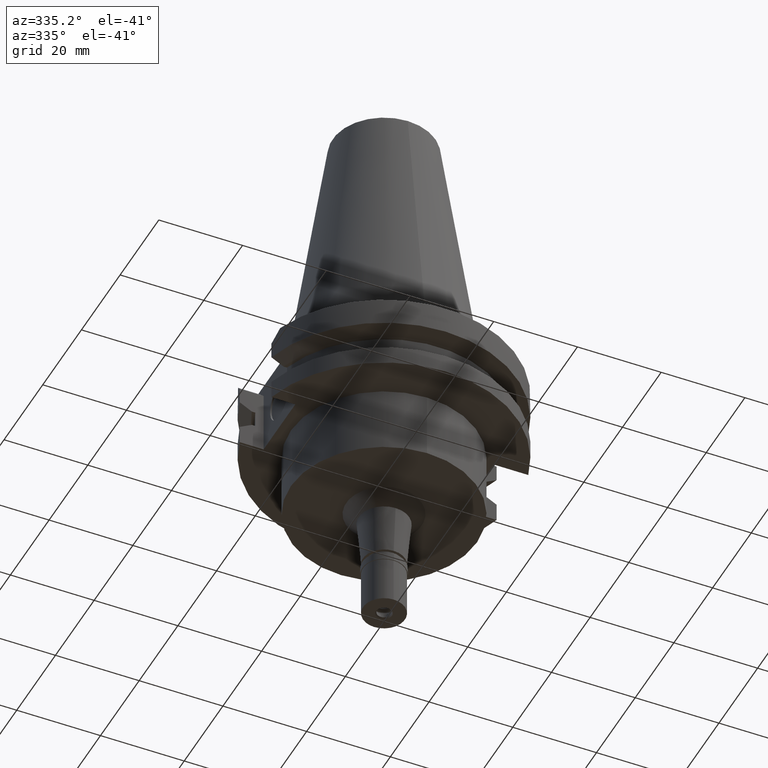
[diagram: clean part render]
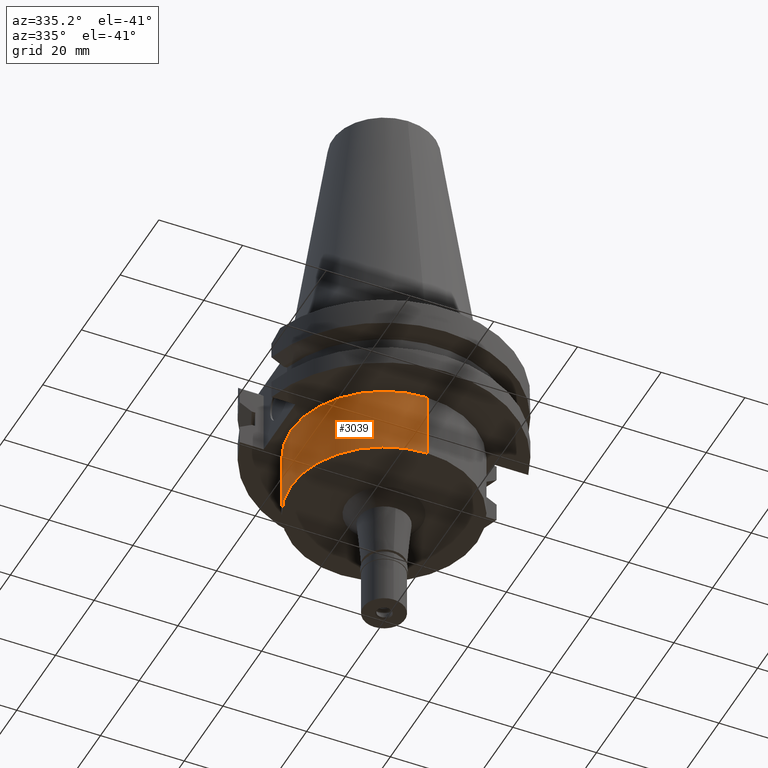
[diagram: same view with one face highlighted and labeled with its STEP entity id]
A machine part, auxiliary view. The second image highlights one B-rep face of the part: STEP entity #3039.
In plain terms, the highlighted cylindrical surface (partial cylindrical patch) has radius 22.225 mm, axis along (0, 0, -1).
Its self-contained STEP definition (entity closure, byte-faithful):
#94 = ORIENTED_EDGE ( 'NONE', *, *, #1256, .F. ) ;
#123 = DIRECTION ( 'NONE',  ( 0.0000000000000000000, 0.0000000000000000000, 1.000000000000000000 ) ) ;
#386 = VERTEX_POINT ( 'NONE', #2627 ) ;
#402 = DIRECTION ( 'NONE',  ( 0.0000000000000000000, 0.0000000000000000000, -1.000000000000000000 ) ) ;
#405 = CARTESIAN_POINT ( 'NONE',  ( 0.0000000000000000000, 2.138876250880999822E-14, -35.00000000000000000 ) ) ;
#567 = FACE_OUTER_BOUND ( 'NONE', #1929, .T. ) ;
#607 = VERTEX_POINT ( 'NONE', #2680 ) ;
#716 = CARTESIAN_POINT ( 'NONE',  ( 0.0000000000000000000, 22.22500000000000142, -19.05000000000000071 ) ) ;
#718 = DIRECTION ( 'NONE',  ( 0.0000000000000000000, 0.0000000000000000000, -1.000000000000000000 ) ) ;
#725 = EDGE_CURVE ( 'NONE', #1476, #607, #1702, .T. ) ;
#860 = CARTESIAN_POINT ( 'NONE',  ( 0.0000000000000000000, 2.138876250880999822E-14, -19.05000000000000071 ) ) ;
#896 = CARTESIAN_POINT ( 'NONE',  ( 0.0000000000000000000, -22.22500000000000142, -19.05000000000000071 ) ) ;
#949 = CARTESIAN_POINT ( 'NONE',  ( 0.0000000000000000000, 2.138876250880999822E-14, 74.65250000000000341 ) ) ;
#967 = CYLINDRICAL_SURFACE ( 'NONE', #1335, 22.22500000000000142 ) ;
#969 = CARTESIAN_POINT ( 'NONE',  ( 0.0000000000000000000, 22.22500000000000142, -19.05000000000000071 ) ) ;
#1022 = EDGE_CURVE ( 'NONE', #1837, #1476, #2502, .T. ) ;
#1087 = AXIS2_PLACEMENT_3D ( 'NONE', #860, #1328, #1164 ) ;
#1134 = DIRECTION ( 'NONE',  ( 0.0000000000000000000, 1.000000000000000000, 0.0000000000000000000 ) ) ;
#1164 = DIRECTION ( 'NONE',  ( 0.0000000000000000000, -1.000000000000000000, 0.0000000000000000000 ) ) ;
#1256 = EDGE_CURVE ( 'NONE', #1837, #386, #2116, .T. ) ;
#1328 = DIRECTION ( 'NONE',  ( 0.0000000000000000000, 0.0000000000000000000, -1.000000000000000000 ) ) ;
#1335 = AXIS2_PLACEMENT_3D ( 'NONE', #949, #2944, #1461 ) ;
#1350 = ORIENTED_EDGE ( 'NONE', *, *, #1022, .T. ) ;
#1394 = ORIENTED_EDGE ( 'NONE', *, *, #725, .T. ) ;
#1461 = DIRECTION ( 'NONE',  ( 0.0000000000000000000, -1.000000000000000000, 0.0000000000000000000 ) ) ;
#1476 = VERTEX_POINT ( 'NONE', #716 ) ;
#1520 = VECTOR ( 'NONE', #402, 1000.000000000000000 ) ;
#1594 = CARTESIAN_POINT ( 'NONE',  ( 0.0000000000000000000, -22.22500000000000142, -19.05000000000000071 ) ) ;
#1702 = LINE ( 'NONE', #969, #1872 ) ;
#1765 = AXIS2_PLACEMENT_3D ( 'NONE', #405, #123, #1134 ) ;
#1837 = VERTEX_POINT ( 'NONE', #1594 ) ;
#1872 = VECTOR ( 'NONE', #718, 1000.000000000000000 ) ;
#1892 = ORIENTED_EDGE ( 'NONE', *, *, #2364, .T. ) ;
#1929 = EDGE_LOOP ( 'NONE', ( #1892, #94, #1350, #1394 ) ) ;
#2027 = CIRCLE ( 'NONE', #1765, 22.22500000000000142 ) ;
#2116 = LINE ( 'NONE', #896, #1520 ) ;
#2364 = EDGE_CURVE ( 'NONE', #607, #386, #2027, .T. ) ;
#2502 = CIRCLE ( 'NONE', #1087, 22.22500000000000142 ) ;
#2627 = CARTESIAN_POINT ( 'NONE',  ( 0.0000000000000000000, -22.22500000000000142, -35.00000000000000000 ) ) ;
#2680 = CARTESIAN_POINT ( 'NONE',  ( 0.0000000000000000000, 22.22500000000000142, -35.00000000000000000 ) ) ;
#2944 = DIRECTION ( 'NONE',  ( 0.0000000000000000000, 0.0000000000000000000, -1.000000000000000000 ) ) ;
#3039 = ADVANCED_FACE ( 'NONE', ( #567 ), #967, .T. ) ;